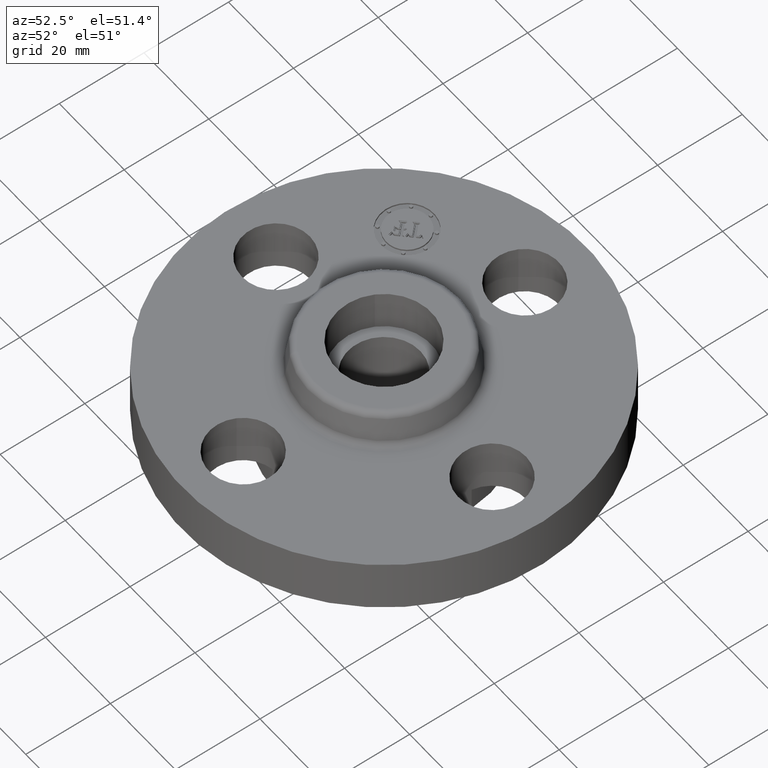
[diagram: clean part render]
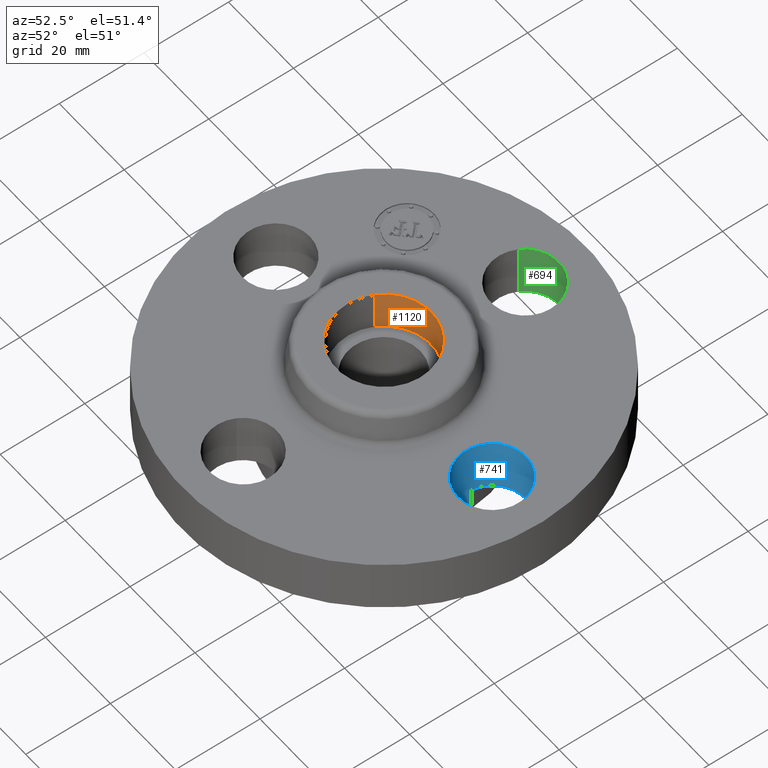
[diagram: same view with three faces highlighted in distinct colors, each labeled with its STEP entity id]
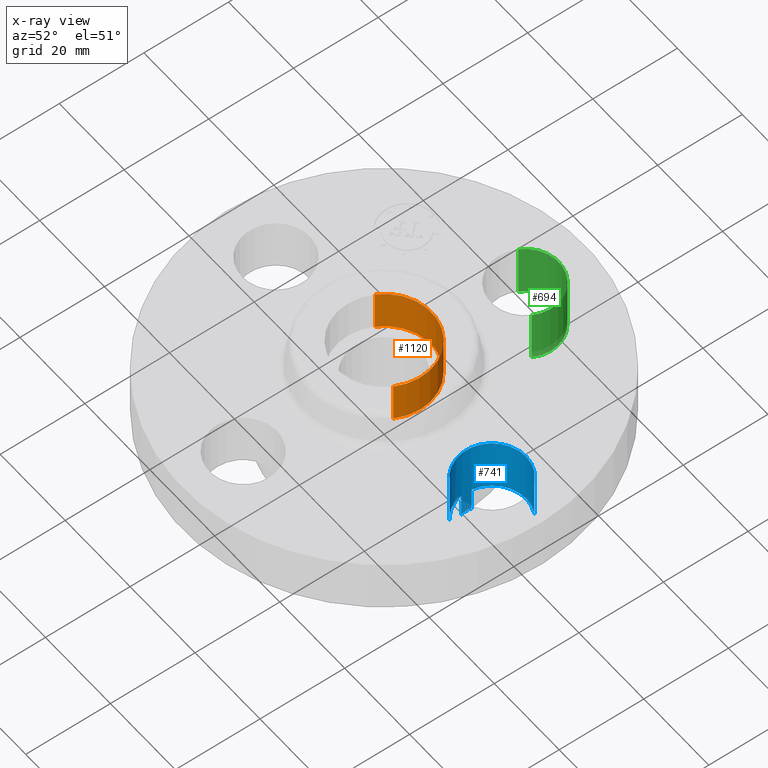
[diagram: x-ray of the same camera — body ghosted, the three highlighted faces saturated]
A machine part, auxiliary view with three faces highlighted in distinct colors.
The next image is the same camera in x-ray (body ghosted, the three faces saturated) — at least one of them is partly hidden behind the body in this view.
Their STEP definitions:

[orange] entity #1120 — the highlighted cylindrical surface (partial cylindrical patch) has radius 11.176 mm, axis along (0, 0, -1).
#42=AXIS2_PLACEMENT_3D('Circle Axis2P3D',#40,#41,$) ;
#1053=AXIS2_PLACEMENT_3D('Circle Axis2P3D',#1051,#1052,$) ;
#1102=AXIS2_PLACEMENT_3D('Cylinder Axis2P3D',#1099,#1100,#1101) ;
#40=CARTESIAN_POINT('Axis2P3D Location',(1.04902962957E-016,-6.99353086378E-017,0.430000000002)) ;
#44=CARTESIAN_POINT('Vertex',(-0.386136327233,0.210947236987,0.430000000002)) ;
#46=CARTESIAN_POINT('Vertex',(0.386136327233,-0.210947236987,0.430000000002)) ;
#1051=CARTESIAN_POINT('Axis2P3D Location',(6.99353086378E-017,-1.39870617276E-016,0.810000000003)) ;
#1055=CARTESIAN_POINT('Vertex',(-0.386136327233,0.210947236987,0.810000000003)) ;
#1057=CARTESIAN_POINT('Vertex',(0.386136327233,-0.210947236987,0.810000000003)) ;
#1099=CARTESIAN_POINT('Axis2P3D Location',(1.04902962957E-016,-6.99353086378E-017,0.806062992129)) ;
#1104=CARTESIAN_POINT('Line Origine',(-0.386136327233,0.210947236987,0.620000000002)) ;
#1109=CARTESIAN_POINT('Line Origine',(0.386136327233,-0.210947236987,0.620000000002)) ;
#41=DIRECTION('Axis2P3D Direction',(0.,0.,-0.0393700787402)) ;
#1052=DIRECTION('Axis2P3D Direction',(0.,0.,-0.0393700787402)) ;
#1100=DIRECTION('Axis2P3D Direction',(0.,0.,-0.0393700787402)) ;
#1101=DIRECTION('Axis2P3D XDirection',(0.0345504945626,-0.0188750212049,0.)) ;
#1105=DIRECTION('Vector Direction',(0.,0.,-0.0393700787402)) ;
#1110=DIRECTION('Vector Direction',(0.,0.,-0.0393700787402)) ;
#1106=VECTOR('Line Direction',#1105,0.0393700787402) ;
#1111=VECTOR('Line Direction',#1110,0.0393700787402) ;
#1115=ORIENTED_EDGE('',*,*,#1059,.F.) ;
#1116=ORIENTED_EDGE('',*,*,#1108,.F.) ;
#1117=ORIENTED_EDGE('',*,*,#48,.T.) ;
#1118=ORIENTED_EDGE('',*,*,#1113,.T.) ;
#1120=ADVANCED_FACE('PartBody',(#1119),#1103,.F.) ;
#43=CIRCLE('generated circle',#42,0.440000000002) ;
#1054=CIRCLE('generated circle',#1053,0.440000000002) ;
#1103=CYLINDRICAL_SURFACE('generated cylinder',#1102,0.440000000002) ;
#48=EDGE_CURVE('',#45,#47,#43,.T.) ;
#1059=EDGE_CURVE('',#1056,#1058,#1054,.T.) ;
#1108=EDGE_CURVE('',#45,#1056,#1107,.F.) ;
#1113=EDGE_CURVE('',#47,#1058,#1112,.F.) ;
#1114=EDGE_LOOP('',(#1115,#1116,#1117,#1118)) ;
#1119=FACE_OUTER_BOUND('',#1114,.T.) ;
#1107=LINE('Line',#1104,#1106) ;
#1112=LINE('Line',#1109,#1111) ;
#45=VERTEX_POINT('',#44) ;
#47=VERTEX_POINT('',#46) ;
#1056=VERTEX_POINT('',#1055) ;
#1058=VERTEX_POINT('',#1057) ;

[blue] entity #741 — the highlighted cylindrical surface (partial cylindrical patch) has radius 8.001 mm, axis along (0, -0, -1).
#258=AXIS2_PLACEMENT_3D('Circle Axis2P3D',#256,#257,$) ;
#464=AXIS2_PLACEMENT_3D('Circle Axis2P3D',#462,#463,$) ;
#478=AXIS2_PLACEMENT_3D('Circle Axis2P3D',#476,#477,$) ;
#698=AXIS2_PLACEMENT_3D('Cylinder Axis2P3D',#695,#696,#697) ;
#728=AXIS2_PLACEMENT_3D('Circle Axis2P3D',#726,#727,$) ;
#195=CARTESIAN_POINT('Vertex',(0.998807251912,-0.0488269754871,-0.219000000001)) ;
#253=CARTESIAN_POINT('Vertex',(0.998807251912,0.0488269754871,-0.219000000001)) ;
#256=CARTESIAN_POINT('Axis2P3D Location',(1.31000000001,6.99353086378E-017,-0.219000000001)) ;
#297=CARTESIAN_POINT('Line Origine',(0.998807251912,-0.0488269754871,-0.1095)) ;
#301=CARTESIAN_POINT('Vertex',(0.998807251912,-0.0488269754871,6.99353086378E-017)) ;
#424=CARTESIAN_POINT('Vertex',(0.998807251912,0.0488269754871,6.99353086378E-017)) ;
#427=CARTESIAN_POINT('Line Origine',(0.998807251912,0.0488269754871,-0.1095)) ;
#462=CARTESIAN_POINT('Axis2P3D Location',(1.31000000001,1.39870617276E-016,0.)) ;
#466=CARTESIAN_POINT('Vertex',(1.15898095534,-0.276438506997,0.)) ;
#473=CARTESIAN_POINT('Vertex',(1.46101904467,0.276438506997,0.)) ;
#476=CARTESIAN_POINT('Axis2P3D Location',(1.31000000001,1.39870617276E-016,0.)) ;
#695=CARTESIAN_POINT('Axis2P3D Location',(1.31000000001,8.02143653445E-017,0.496062992128)) ;
#700=CARTESIAN_POINT('Line Origine',(1.46101904467,0.276438506997,0.140500000001)) ;
#704=CARTESIAN_POINT('Vertex',(1.46101904467,0.276438506997,0.500000000002)) ;
#707=CARTESIAN_POINT('Line Origine',(1.15898095534,-0.276438506997,0.140500000001)) ;
#711=CARTESIAN_POINT('Vertex',(1.15898095534,-0.276438506997,0.500000000002)) ;
#726=CARTESIAN_POINT('Axis2P3D Location',(1.31000000001,8.02143653445E-017,0.500000000002)) ;
#257=DIRECTION('Axis2P3D Direction',(0.,0.,-0.0393700787402)) ;
#298=DIRECTION('Vector Direction',(0.,0.,-0.0393700787402)) ;
#428=DIRECTION('Vector Direction',(0.,0.,-0.0393700787402)) ;
#463=DIRECTION('Axis2P3D Direction',(0.,0.,-0.0393700787402)) ;
#477=DIRECTION('Axis2P3D Direction',(0.,0.,-0.0393700787402)) ;
#696=DIRECTION('Axis2P3D Direction',(0.,-0.,-0.0393700787402)) ;
#697=DIRECTION('Axis2P3D XDirection',(-0.0188750212049,-0.0345504945626,0.)) ;
#701=DIRECTION('Vector Direction',(0.,0.,-0.0393700787402)) ;
#708=DIRECTION('Vector Direction',(0.,0.,-0.0393700787402)) ;
#727=DIRECTION('Axis2P3D Direction',(0.,-0.,-0.0393700787402)) ;
#299=VECTOR('Line Direction',#298,0.0393700787402) ;
#429=VECTOR('Line Direction',#428,0.0393700787402) ;
#702=VECTOR('Line Direction',#701,0.0393700787402) ;
#709=VECTOR('Line Direction',#708,0.0393700787402) ;
#732=ORIENTED_EDGE('',*,*,#713,.F.) ;
#733=ORIENTED_EDGE('',*,*,#468,.T.) ;
#734=ORIENTED_EDGE('',*,*,#303,.T.) ;
#735=ORIENTED_EDGE('',*,*,#260,.T.) ;
#736=ORIENTED_EDGE('',*,*,#431,.F.) ;
#737=ORIENTED_EDGE('',*,*,#480,.T.) ;
#738=ORIENTED_EDGE('',*,*,#706,.T.) ;
#739=ORIENTED_EDGE('',*,*,#730,.F.) ;
#741=ADVANCED_FACE('PartBody',(#740),#699,.F.) ;
#259=CIRCLE('generated circle',#258,0.315000000001) ;
#465=CIRCLE('generated circle',#464,0.315000000001) ;
#479=CIRCLE('generated circle',#478,0.315000000001) ;
#729=CIRCLE('generated circle',#728,0.315000000001) ;
#699=CYLINDRICAL_SURFACE('generated cylinder',#698,0.315000000001) ;
#260=EDGE_CURVE('',#196,#254,#259,.T.) ;
#303=EDGE_CURVE('',#302,#196,#300,.T.) ;
#431=EDGE_CURVE('',#425,#254,#430,.T.) ;
#468=EDGE_CURVE('',#467,#302,#465,.T.) ;
#480=EDGE_CURVE('',#425,#474,#479,.T.) ;
#706=EDGE_CURVE('',#474,#705,#703,.F.) ;
#713=EDGE_CURVE('',#467,#712,#710,.F.) ;
#730=EDGE_CURVE('',#712,#705,#729,.T.) ;
#731=EDGE_LOOP('',(#732,#733,#734,#735,#736,#737,#738,#739)) ;
#740=FACE_OUTER_BOUND('',#731,.T.) ;
#300=LINE('Line',#297,#299) ;
#430=LINE('Line',#427,#429) ;
#703=LINE('Line',#700,#702) ;
#710=LINE('Line',#707,#709) ;
#196=VERTEX_POINT('',#195) ;
#254=VERTEX_POINT('',#253) ;
#302=VERTEX_POINT('',#301) ;
#425=VERTEX_POINT('',#424) ;
#467=VERTEX_POINT('',#466) ;
#474=VERTEX_POINT('',#473) ;
#705=VERTEX_POINT('',#704) ;
#712=VERTEX_POINT('',#711) ;

[green] entity #694 — the highlighted cylindrical surface (partial cylindrical patch) has radius 8.001 mm, axis along (0, -0, -1).
#490=AXIS2_PLACEMENT_3D('Circle Axis2P3D',#488,#489,$) ;
#667=AXIS2_PLACEMENT_3D('Cylinder Axis2P3D',#664,#665,#666) ;
#685=AXIS2_PLACEMENT_3D('Circle Axis2P3D',#683,#684,$) ;
#485=CARTESIAN_POINT('Vertex',(0.276438506997,1.15898095534,0.)) ;
#488=CARTESIAN_POINT('Axis2P3D Location',(-1.74838271595E-017,1.31000000001,0.)) ;
#492=CARTESIAN_POINT('Vertex',(-0.276438506997,1.46101904467,0.)) ;
#664=CARTESIAN_POINT('Axis2P3D Location',(0.,1.31000000001,0.496062992128)) ;
#669=CARTESIAN_POINT('Line Origine',(-0.276438506997,1.46101904467,0.140500000001)) ;
#673=CARTESIAN_POINT('Vertex',(-0.276438506997,1.46101904467,0.500000000002)) ;
#676=CARTESIAN_POINT('Line Origine',(0.276438506997,1.15898095534,0.140500000001)) ;
#680=CARTESIAN_POINT('Vertex',(0.276438506997,1.15898095534,0.500000000002)) ;
#683=CARTESIAN_POINT('Axis2P3D Location',(0.,1.31000000001,0.500000000002)) ;
#489=DIRECTION('Axis2P3D Direction',(0.,0.,-0.0393700787402)) ;
#665=DIRECTION('Axis2P3D Direction',(0.,-0.,-0.0393700787402)) ;
#666=DIRECTION('Axis2P3D XDirection',(0.0345504945626,-0.0188750212049,0.)) ;
#670=DIRECTION('Vector Direction',(0.,0.,-0.0393700787402)) ;
#677=DIRECTION('Vector Direction',(0.,0.,-0.0393700787402)) ;
#684=DIRECTION('Axis2P3D Direction',(0.,-0.,-0.0393700787402)) ;
#671=VECTOR('Line Direction',#670,0.0393700787402) ;
#678=VECTOR('Line Direction',#677,0.0393700787402) ;
#689=ORIENTED_EDGE('',*,*,#675,.F.) ;
#690=ORIENTED_EDGE('',*,*,#494,.T.) ;
#691=ORIENTED_EDGE('',*,*,#682,.T.) ;
#692=ORIENTED_EDGE('',*,*,#687,.F.) ;
#694=ADVANCED_FACE('PartBody',(#693),#668,.F.) ;
#491=CIRCLE('generated circle',#490,0.315000000001) ;
#686=CIRCLE('generated circle',#685,0.315000000001) ;
#668=CYLINDRICAL_SURFACE('generated cylinder',#667,0.315000000001) ;
#494=EDGE_CURVE('',#493,#486,#491,.T.) ;
#675=EDGE_CURVE('',#493,#674,#672,.F.) ;
#682=EDGE_CURVE('',#486,#681,#679,.F.) ;
#687=EDGE_CURVE('',#674,#681,#686,.T.) ;
#688=EDGE_LOOP('',(#689,#690,#691,#692)) ;
#693=FACE_OUTER_BOUND('',#688,.T.) ;
#672=LINE('Line',#669,#671) ;
#679=LINE('Line',#676,#678) ;
#486=VERTEX_POINT('',#485) ;
#493=VERTEX_POINT('',#492) ;
#674=VERTEX_POINT('',#673) ;
#681=VERTEX_POINT('',#680) ;